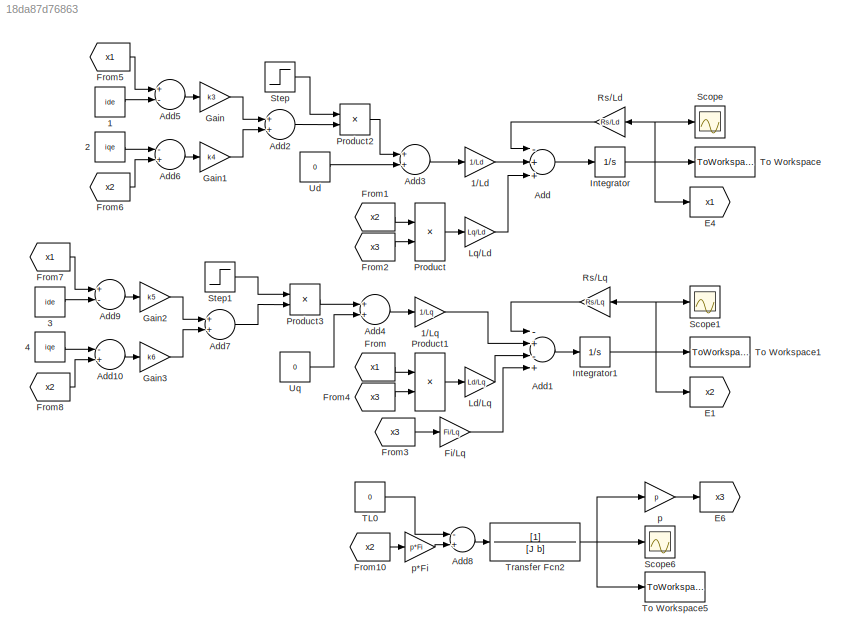
MODEL slx_18da87d76863
KIND model
CONFIG AbsTol = auto
CONFIG EnableMultiTasking = off
CONFIG FixedStep = 5e-5
CONFIG InitFcn = Rs = 0.011\nLd = 0.018\nLq = 0.018\nFi = 0.055\np = 4\nJ = 0.102\nb = 0.18\n\ntC = 20\nk3 = -1.586440829524976\nk4 = -0.541242258944882\nk5 = -0.541242258944882\nk6 = -0.328094464592671\n\nide = 2.930555555555555\niqe = 0.605243293597248
CONFIG MaxStep = 1e-4
CONFIG MinStep = 1e-6
CONFIG RelTol = 1e-10
CONFIG SampleTimeConstraint = Unconstrained
CONFIG Solver = ode45
CONFIG SolverName = ode45
CONFIG StartTime = 0.0
CONFIG StopTime = 50
BLOCK [Constant] 1
  Value = ide
BLOCK [Gain] 1//Ld
  Gain = 1/Ld
  OutDataTypeStr = Inherit: Inherit via internal rule
  ParamDataTypeStr = Inherit: Inherit via internal rule
  SaturateOnIntegerOverflow = off
BLOCK [Gain] 1//Lq
  Gain = 1/Lq
  OutDataTypeStr = Inherit: Inherit via internal rule
  ParamDataTypeStr = Inherit: Inherit via internal rule
  SaturateOnIntegerOverflow = off
BLOCK [Constant] 2
  Value = iqe
BLOCK [Constant] 3
  Value = ide
BLOCK [Constant] 4
  Value = iqe
BLOCK [Sum] Add
  InputSameDT = off
  Inputs = -++
  OutDataTypeStr = Inherit: Inherit via internal rule
  Ports = [3, 1]
  SaturateOnIntegerOverflow = off
BLOCK [Sum] Add1
  InputSameDT = off
  Inputs = -+-+
  OutDataTypeStr = Inherit: Inherit via internal rule
  Ports = [4, 1]
  SaturateOnIntegerOverflow = off
BLOCK [Sum] Add10
  InputSameDT = off
  Inputs = -+
  OutDataTypeStr = Inherit: Inherit via internal rule
  Ports = [2, 1]
  SaturateOnIntegerOverflow = off
BLOCK [Sum] Add2
  InputSameDT = off
  OutDataTypeStr = Inherit: Inherit via internal rule
  Ports = [2, 1]
  SaturateOnIntegerOverflow = off
BLOCK [Sum] Add3
  InputSameDT = off
  OutDataTypeStr = Inherit: Inherit via internal rule
  Ports = [2, 1]
  SaturateOnIntegerOverflow = off
BLOCK [Sum] Add4
  InputSameDT = off
  OutDataTypeStr = Inherit: Inherit via internal rule
  Ports = [2, 1]
  SaturateOnIntegerOverflow = off
BLOCK [Sum] Add5
  InputSameDT = off
  Inputs = +-
  OutDataTypeStr = Inherit: Inherit via internal rule
  Ports = [2, 1]
  SaturateOnIntegerOverflow = off
BLOCK [Sum] Add6
  InputSameDT = off
  Inputs = -+
  OutDataTypeStr = Inherit: Inherit via internal rule
  Ports = [2, 1]
  SaturateOnIntegerOverflow = off
BLOCK [Sum] Add7
  InputSameDT = off
  OutDataTypeStr = Inherit: Inherit via internal rule
  Ports = [2, 1]
  SaturateOnIntegerOverflow = off
BLOCK [Sum] Add8
  InputSameDT = off
  Inputs = -+
  OutDataTypeStr = Inherit: Inherit via internal rule
  Ports = [2, 1]
  SaturateOnIntegerOverflow = off
BLOCK [Sum] Add9
  InputSameDT = off
  Inputs = +-
  OutDataTypeStr = Inherit: Inherit via internal rule
  Ports = [2, 1]
  SaturateOnIntegerOverflow = off
BLOCK [Goto] E1
  GotoTag = x2
BLOCK [Goto] E4
  GotoTag = x1
BLOCK [Goto] E6
  GotoTag = x3
BLOCK [Gain] Fi//Lq
  Gain = Fi/Lq
  OutDataTypeStr = Inherit: Inherit via internal rule
  ParamDataTypeStr = Inherit: Inherit via internal rule
  SaturateOnIntegerOverflow = off
BLOCK [From] From
  GotoTag = x1
BLOCK [From] From1
  GotoTag = x2
BLOCK [From] From10
  GotoTag = x2
BLOCK [From] From2
  GotoTag = x3
BLOCK [From] From3
  GotoTag = x3
BLOCK [From] From4
  GotoTag = x3
BLOCK [From] From5
  GotoTag = x1
BLOCK [From] From6
  GotoTag = x2
BLOCK [From] From7
  GotoTag = x1
BLOCK [From] From8
  GotoTag = x2
BLOCK [Gain] Gain
  Gain = k3
  OutDataTypeStr = Inherit: Inherit via internal rule
  ParamDataTypeStr = Inherit: Inherit via internal rule
  SaturateOnIntegerOverflow = off
BLOCK [Gain] Gain1
  Gain = k4
  OutDataTypeStr = Inherit: Inherit via internal rule
  ParamDataTypeStr = Inherit: Inherit via internal rule
  SaturateOnIntegerOverflow = off
BLOCK [Gain] Gain2
  Gain = k5
  OutDataTypeStr = Inherit: Inherit via internal rule
  ParamDataTypeStr = Inherit: Inherit via internal rule
  SaturateOnIntegerOverflow = off
BLOCK [Gain] Gain3
  Gain = k6
  OutDataTypeStr = Inherit: Inherit via internal rule
  ParamDataTypeStr = Inherit: Inherit via internal rule
  SaturateOnIntegerOverflow = off
BLOCK [Integrator] Integrator
  InitialCondition = 0.15
  Ports = [1, 1]
BLOCK [Integrator] Integrator1
  InitialCondition = 0.14
  Ports = [1, 1]
BLOCK [Gain] Ld//Lq
  Gain = Ld/Lq
  OutDataTypeStr = Inherit: Inherit via internal rule
  ParamDataTypeStr = Inherit: Inherit via internal rule
  SaturateOnIntegerOverflow = off
BLOCK [Gain] Lq//Ld
  Gain = Lq/Ld
  OutDataTypeStr = Inherit: Inherit via internal rule
  ParamDataTypeStr = Inherit: Inherit via internal rule
  SaturateOnIntegerOverflow = off
BLOCK [Product] Product
  InputSameDT = off
  OutDataTypeStr = Inherit: Inherit via internal rule
  Ports = [2, 1]
  RndMeth = Floor
  SaturateOnIntegerOverflow = off
BLOCK [Product] Product1
  InputSameDT = off
  OutDataTypeStr = Inherit: Inherit via internal rule
  Ports = [2, 1]
  RndMeth = Floor
  SaturateOnIntegerOverflow = off
BLOCK [Product] Product2
  InputSameDT = off
  OutDataTypeStr = Inherit: Inherit via internal rule
  Ports = [2, 1]
  RndMeth = Floor
  SaturateOnIntegerOverflow = off
BLOCK [Product] Product3
  InputSameDT = off
  OutDataTypeStr = Inherit: Inherit via internal rule
  Ports = [2, 1]
  RndMeth = Floor
  SaturateOnIntegerOverflow = off
BLOCK [Gain] Rs//Ld
  Gain = Rs/Ld
  OutDataTypeStr = Inherit: Inherit via internal rule
  ParamDataTypeStr = Inherit: Inherit via internal rule
  SaturateOnIntegerOverflow = off
BLOCK [Gain] Rs//Lq
  Gain = Rs/Lq
  OutDataTypeStr = Inherit: Inherit via internal rule
  ParamDataTypeStr = Inherit: Inherit via internal rule
  SaturateOnIntegerOverflow = off
BLOCK [Scope] Scope
  Floating = off
  NumInputPorts = 1
  Ports = [1]
  ScopeSpecificationString = Simulink.scopes.TimeScopeBlockCfg('CurrentConfiguration', extmgr.ConfigurationSet(extmgr.Configuration('Core','General UI',true),extmgr.Configuration('Core','Source UI',true),extmgr.Configuration('Sources','WiredSimulink',true),extmgr.Configuration('Visuals','Time Domain',true,'SerializedDisplays',{struct('MinYLimReal','-0.48397','MaxYLimReal','5.76823','YLabelReal','','MinYLimMag','0.00000','MaxY...<+1374ch>
BLOCK [Scope] Scope1
  Floating = off
  NumInputPorts = 1
  Ports = [1]
  ScopeSpecificationString = Simulink.scopes.TimeScopeBlockCfg('CurrentConfiguration', extmgr.ConfigurationSet(extmgr.Configuration('Core','General UI',true),extmgr.Configuration('Core','Source UI',true),extmgr.Configuration('Sources','WiredSimulink',true,'DataLoggingVariableName','ScopeData1'),extmgr.Configuration('Visuals','Time Domain',true,'SerializedDisplays',{struct('MinYLimReal','-2.11972','MaxYLimReal','3.27096','YLab...<+1414ch>
BLOCK [Scope] Scope6
  Floating = off
  NumInputPorts = 1
  Ports = [1]
  ScopeSpecificationString = Simulink.scopes.TimeScopeBlockCfg('CurrentConfiguration', extmgr.ConfigurationSet(extmgr.Configuration('Core','General UI',true),extmgr.Configuration('Core','Source UI',true),extmgr.Configuration('Sources','WiredSimulink',true,'DataLoggingVariableName','ScopeData2'),extmgr.Configuration('Visuals','Time Domain',true,'SerializedDisplays',{struct('MinYLimReal','-1.54864','MaxYLimReal','2.14588','YLab...<+1479ch>
BLOCK [Step] Step
  SampleTime = 0
  Time = tC
BLOCK [Step] Step1
  SampleTime = 0
  Time = tC
BLOCK [Constant] TL0
  Value = 0
BLOCK [ToWorkspace] To Workspace
  FixptAsFi = on
  MaxDataPoints = inf
  Ports = [1]
  SampleTime = -1
  Save2DSignal = 2-D array (concatenate along first dimension)
  VariableName = x1
BLOCK [ToWorkspace] To Workspace1
  FixptAsFi = on
  MaxDataPoints = inf
  Ports = [1]
  SampleTime = -1
  Save2DSignal = 2-D array (concatenate along first dimension)
  VariableName = x2
BLOCK [ToWorkspace] To Workspace5
  FixptAsFi = on
  MaxDataPoints = inf
  Ports = [1]
  SampleTime = -1
  Save2DSignal = 2-D array (concatenate along first dimension)
  VariableName = x3
BLOCK [TransferFcn] Transfer Fcn2
  Denominator = [J b]
BLOCK [Constant] Ud
  Value = 0
BLOCK [Constant] Uq
  Value = 0
BLOCK [Gain] p
  Gain = p
  OutDataTypeStr = Inherit: Inherit via internal rule
  ParamDataTypeStr = Inherit: Inherit via internal rule
  SaturateOnIntegerOverflow = off
BLOCK [Gain] p*Fi
  Gain = p*Fi
  OutDataTypeStr = Inherit: Inherit via internal rule
  ParamDataTypeStr = Inherit: Inherit via internal rule
  SaturateOnIntegerOverflow = off
LINE 1//Ld:1 -> Add:2
LINE 1//Lq:1 -> Add1:2
LINE 1:1 -> Add5:2
LINE 2:1 -> Add6:1
LINE 3:1 -> Add9:2
LINE 4:1 -> Add10:1
LINE Add10:1 -> Gain3:1
LINE Add1:1 -> Integrator1:1
LINE Add2:1 -> Product2:2
LINE Add3:1 -> 1//Ld:1
LINE Add4:1 -> 1//Lq:1
LINE Add5:1 -> Gain:1
LINE Add6:1 -> Gain1:1
LINE Add7:1 -> Product3:2
LINE Add8:1 -> Transfer Fcn2:1
LINE Add9:1 -> Gain2:1
LINE Add:1 -> Integrator:1
LINE Fi//Lq:1 -> Add1:4
LINE From10:1 -> p*Fi:1
LINE From1:1 -> Product:1
LINE From2:1 -> Product:2
LINE From3:1 -> Fi//Lq:1
LINE From4:1 -> Product1:2
LINE From5:1 -> Add5:1
LINE From6:1 -> Add6:2
LINE From7:1 -> Add9:1
LINE From8:1 -> Add10:2
LINE From:1 -> Product1:1
LINE Gain1:1 -> Add2:2
LINE Gain2:1 -> Add7:1
LINE Gain3:1 -> Add7:2
LINE Gain:1 -> Add2:1
NET Integrator1:1 -> E1:1, Rs//Lq:1, Scope1:1, To Workspace1:1
NET Integrator:1 -> E4:1, Rs//Ld:1, Scope:1, To Workspace:1
LINE Ld//Lq:1 -> Add1:3
LINE Lq//Ld:1 -> Add:3
LINE Product1:1 -> Ld//Lq:1
LINE Product2:1 -> Add3:1
LINE Product3:1 -> Add4:1
LINE Product:1 -> Lq//Ld:1
LINE Rs//Ld:1 -> Add:1
LINE Rs//Lq:1 -> Add1:1
LINE Step1:1 -> Product3:1
LINE Step:1 -> Product2:1
LINE TL0:1 -> Add8:1
NET Transfer Fcn2:1 -> Scope6:1, To Workspace5:1, p:1
LINE Ud:1 -> Add3:2
LINE Uq:1 -> Add4:2
LINE p*Fi:1 -> Add8:2
LINE p:1 -> E6:1
note: NET lines group one-source signal fan-out (src -> all destinations, sorted); 1:1 wires keep LINE
